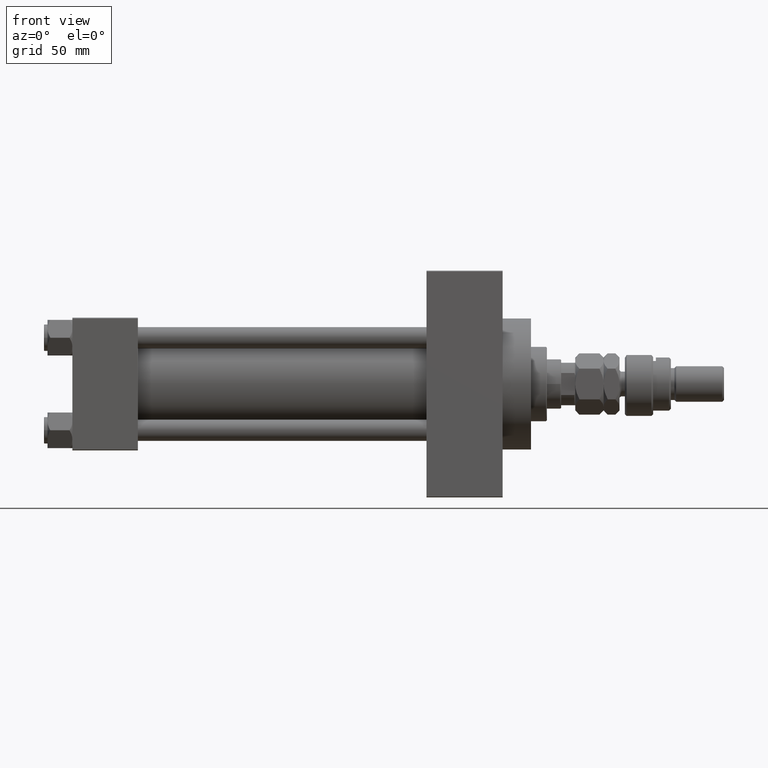
[diagram: clean part render]
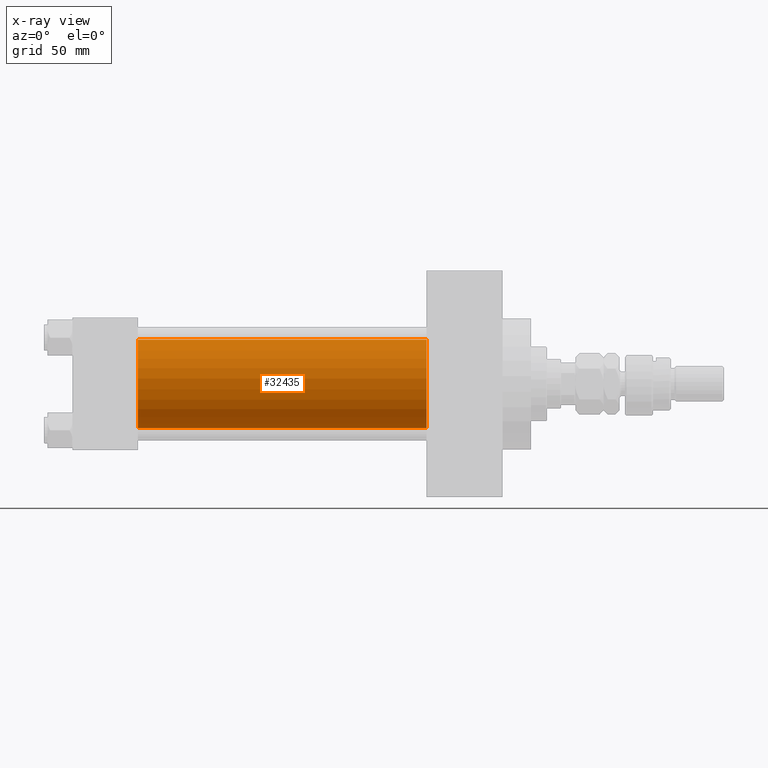
[diagram: x-ray — body ghosted, one internal face saturated and labeled with its STEP entity id]
A machine part, front view, then the same camera in x-ray: the body is ghosted and one INTERNAL B-rep face — a face not visible from any outside direction — is saturated and labeled: STEP entity #32435.
In plain terms, the highlighted cylindrical surface (partial cylindrical patch) has radius 25 mm, axis along (-1, -0, -0).
Its self-contained STEP definition (entity closure, byte-faithful):
#52 = CARTESIAN_POINT ( 'NONE',  ( 200.0000000000000000, -2.602085213965210642E-15, 0.000000000000000000 ) ) ;
#391 = FACE_OUTER_BOUND ( 'NONE', #14001, .T. ) ;
#2860 = ORIENTED_EDGE ( 'NONE', *, *, #19869, .F. ) ;
#4008 = CIRCLE ( 'NONE', #47986, 25.00000000000000000 ) ;
#5079 = VERTEX_POINT ( 'NONE', #47358 ) ;
#5555 = VERTEX_POINT ( 'NONE', #46398 ) ;
#5762 = EDGE_CURVE ( 'NONE', #5079, #5555, #4008, .T. ) ;
#6008 = CARTESIAN_POINT ( 'NONE',  ( 200.0000000000000000, 4.595317839031724996E-16, -25.00000000000000000 ) ) ;
#6707 = DIRECTION ( 'NONE',  ( 0.000000000000000000, 0.000000000000000000, 1.000000000000000000 ) ) ;
#7341 = ORIENTED_EDGE ( 'NONE', *, *, #14738, .F. ) ;
#8571 = VECTOR ( 'NONE', #19718, 1000.000000000000000 ) ;
#14001 = EDGE_LOOP ( 'NONE', ( #47836, #17491, #7341, #2860 ) ) ;
#14130 = DIRECTION ( 'NONE',  ( -1.000000000000000000, -0.000000000000000000, -0.000000000000000000 ) ) ;
#14149 = AXIS2_PLACEMENT_3D ( 'NONE', #50392, #14130, #6707 ) ;
#14738 = EDGE_CURVE ( 'NONE', #29807, #52384, #22813, .T. ) ;
#15720 = AXIS2_PLACEMENT_3D ( 'NONE', #16179, #32331, #48470 ) ;
#16179 = CARTESIAN_POINT ( 'NONE',  ( 37.00000000000000000, -2.602085213965210642E-15, 0.000000000000000000 ) ) ;
#16451 = DIRECTION ( 'NONE',  ( 1.000000000000000000, 0.000000000000000000, 0.000000000000000000 ) ) ;
#17491 = ORIENTED_EDGE ( 'NONE', *, *, #23130, .T. ) ;
#19455 = LINE ( 'NONE', #36376, #8571 ) ;
#19718 = DIRECTION ( 'NONE',  ( -1.000000000000000000, -0.000000000000000000, -0.000000000000000000 ) ) ;
#19869 = EDGE_CURVE ( 'NONE', #5079, #29807, #19455, .T. ) ;
#22813 = CIRCLE ( 'NONE', #15720, 25.00000000000000000 ) ;
#23130 = EDGE_CURVE ( 'NONE', #5555, #52384, #42784, .T. ) ;
#28614 = DIRECTION ( 'NONE',  ( 0.000000000000000000, 0.000000000000000000, -1.000000000000000000 ) ) ;
#29807 = VERTEX_POINT ( 'NONE', #41212 ) ;
#32331 = DIRECTION ( 'NONE',  ( 1.000000000000000000, 0.000000000000000000, 0.000000000000000000 ) ) ;
#32435 = ADVANCED_FACE ( 'NONE', ( #391 ), #32674, .F. ) ;
#32674 = CYLINDRICAL_SURFACE ( 'NONE', #14149, 25.00000000000000000 ) ;
#36376 = CARTESIAN_POINT ( 'NONE',  ( 200.0000000000000000, -2.602085213965210642E-15, 25.00000000000000000 ) ) ;
#37931 = CARTESIAN_POINT ( 'NONE',  ( 37.00000000000000000, 4.595317839031724996E-16, -25.00000000000000000 ) ) ;
#38275 = VECTOR ( 'NONE', #42260, 1000.000000000000000 ) ;
#41212 = CARTESIAN_POINT ( 'NONE',  ( 37.00000000000000000, -2.602085213965210642E-15, 25.00000000000000000 ) ) ;
#42260 = DIRECTION ( 'NONE',  ( -1.000000000000000000, -0.000000000000000000, -0.000000000000000000 ) ) ;
#42784 = LINE ( 'NONE', #6008, #38275 ) ;
#46398 = CARTESIAN_POINT ( 'NONE',  ( 200.0000000000000000, 4.595317839031724996E-16, -25.00000000000000000 ) ) ;
#47358 = CARTESIAN_POINT ( 'NONE',  ( 200.0000000000000000, -2.602085213965210642E-15, 25.00000000000000000 ) ) ;
#47836 = ORIENTED_EDGE ( 'NONE', *, *, #5762, .T. ) ;
#47986 = AXIS2_PLACEMENT_3D ( 'NONE', #52, #16451, #28614 ) ;
#48470 = DIRECTION ( 'NONE',  ( 0.000000000000000000, 0.000000000000000000, -1.000000000000000000 ) ) ;
#50392 = CARTESIAN_POINT ( 'NONE',  ( 200.0000000000000000, -2.602085213965210642E-15, 0.000000000000000000 ) ) ;
#52384 = VERTEX_POINT ( 'NONE', #37931 ) ;